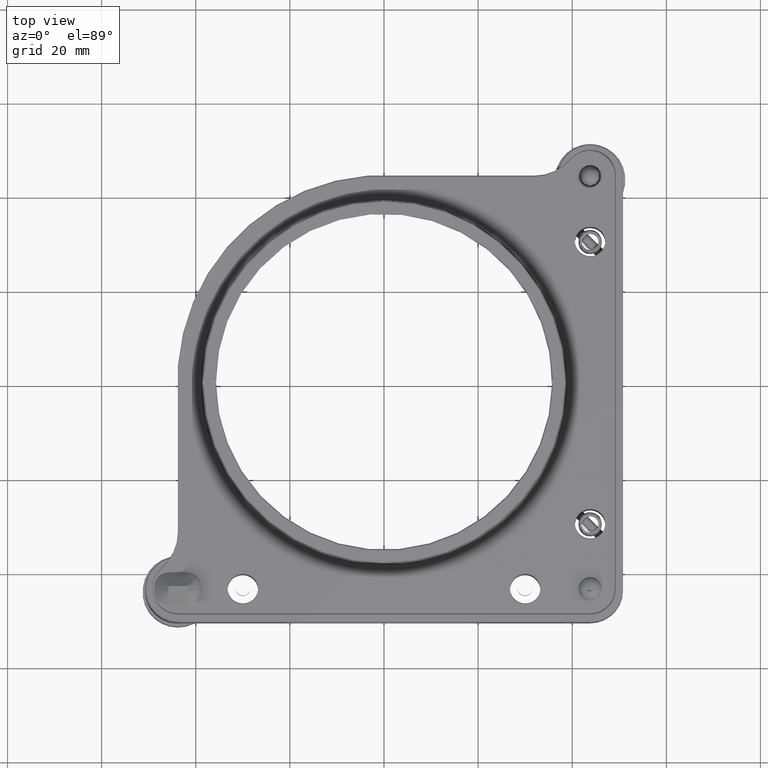
[diagram: clean part render]
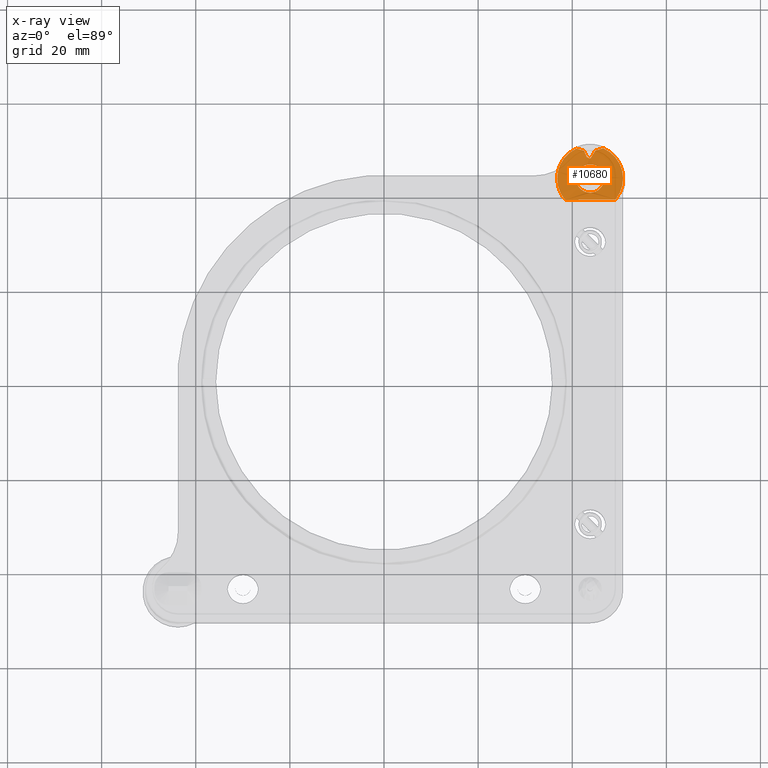
[diagram: x-ray — body ghosted, one internal face saturated and labeled with its STEP entity id]
A machine part, top view, then the same camera in x-ray: the body is ghosted and one INTERNAL B-rep face — a face not visible from any outside direction — is saturated and labeled: STEP entity #10680.
In plain terms, the highlighted planar face has unit normal (0, -0, -1).
Its self-contained STEP definition (entity closure, byte-faithful):
#20 = EDGE_CURVE ( 'NONE', #11042, #3425, #6473, .T. ) ;
#71 = CARTESIAN_POINT ( 'NONE',  ( 50.71463612667319865, 50.88433534184456875, -11.24999999999968381 ) ) ;
#91 = CARTESIAN_POINT ( 'NONE',  ( 43.12635839818614869, 48.34195681374609421, -11.74999999999959677 ) ) ;
#234 = CARTESIAN_POINT ( 'NONE',  ( 40.24165809600086874, 49.82817147133578572, -11.24999999999969980 ) ) ;
#573 = DIRECTION ( 'NONE',  ( -9.443188066785573122E-16, -7.340879554523925956E-15, 1.000000000000000000 ) ) ;
#616 = CARTESIAN_POINT ( 'NONE',  ( 44.66619457740306132, 48.53431151341734306, -11.74999999999960032 ) ) ;
#704 = CARTESIAN_POINT ( 'NONE',  ( 44.83679076531784347, 48.63674082154855682, -11.74999999999959499 ) ) ;
#768 = CARTESIAN_POINT ( 'NONE',  ( 49.95079763130787143, 47.14833789615271087, -11.24999999999968381 ) ) ;
#792 = CARTESIAN_POINT ( 'NONE',  ( 44.37566616111455886, 48.36402346701979127, -11.74999999999959677 ) ) ;
#856 = CARTESIAN_POINT ( 'NONE',  ( 40.96480107234936696, 44.78101143147572571, -11.74999999999961986 ) ) ;
#873 = CARTESIAN_POINT ( 'NONE',  ( 44.08476099202400889, 48.20537130450728824, -11.74999999999959677 ) ) ;
#930 = CARTESIAN_POINT ( 'NONE',  ( 37.34748937889716558, 46.52796653002938143, -11.24999999999969624 ) ) ;
#942 = CARTESIAN_POINT ( 'NONE',  ( 42.33671640497954769, 46.42292214688491470, -11.74999999999960743 ) ) ;
#967 = CARTESIAN_POINT ( 'NONE',  ( 45.26328359502475962, 41.17707785311660729, -11.74999999999965361 ) ) ;
#1008 = AXIS2_PLACEMENT_3D ( 'NONE', #71, #5297, #10508 ) ;
#1029 = CARTESIAN_POINT ( 'NONE',  ( 48.03740992472322091, 49.37272752267310238, -11.24999999999968914 ) ) ;
#1032 = CARTESIAN_POINT ( 'NONE',  ( 43.01461228001090120, 46.72041537211304529, -11.74999999999960920 ) ) ;
#1105 = CARTESIAN_POINT ( 'NONE',  ( 36.83800683629286965, 44.70181958759057039, -11.24999999999968914 ) ) ;
#1112 = CARTESIAN_POINT ( 'NONE',  ( 45.33359673150639679, 50.64151511090496172, -11.24999999999968736 ) ) ;
#1116 = CARTESIAN_POINT ( 'NONE',  ( 43.38252629115073233, 46.79509230339098025, -11.74999999999960743 ) ) ;
#1186 = CARTESIAN_POINT ( 'NONE',  ( 39.42714510664615801, 49.27008393443855994, -11.24999999999969624 ) ) ;
#1220 = CARTESIAN_POINT ( 'NONE',  ( 45.25703948833548651, 46.45494722111575214, -11.74999999999961098 ) ) ;
#1307 = CARTESIAN_POINT ( 'NONE',  ( 46.61928447752942617, 42.77422581609236119, -11.74999999999964118 ) ) ;
#1368 = FACE_OUTER_BOUND ( 'NONE', #11903, .T. ) ;
#1564 = CIRCLE ( 'NONE', #11933, 6.999999999999985789 ) ;
#1806 = CARTESIAN_POINT ( 'NONE',  ( 38.49303744932873173, 39.23533698004224846, -11.49999999999967670 ) ) ;
#1828 = CARTESIAN_POINT ( 'NONE',  ( 42.77424653421842748, 40.98070761356486713, -11.74999999999965006 ) ) ;
#1914 = CARTESIAN_POINT ( 'NONE',  ( 42.81902799979722829, 40.96478601991589130, -11.74999999999965006 ) ) ;
#1989 = CARTESIAN_POINT ( 'NONE',  ( 44.07249854859971805, 48.19930464745058885, -11.74999999999959677 ) ) ;
#2000 = ORIENTED_EDGE ( 'NONE', *, *, #20, .T. ) ;
#2166 = CARTESIAN_POINT ( 'NONE',  ( 46.56673013901488645, 44.96006366985685787, -11.74999999999962341 ) ) ;
#2199 = CARTESIAN_POINT ( 'NONE',  ( 43.79999999999993321, 43.80000000000028848, -11.24999999999960743 ) ) ;
#2215 = CARTESIAN_POINT ( 'NONE',  ( 37.15217781367272920, 45.99250552960464944, -11.24999999999969091 ) ) ;
#2247 = CARTESIAN_POINT ( 'NONE',  ( 45.80236636365506797, 41.55643758815006095, -11.74999999999964650 ) ) ;
#2301 = CARTESIAN_POINT ( 'NONE',  ( 40.12988330037896390, 49.76112875029200922, -11.24999999999969802 ) ) ;
#2311 = CARTESIAN_POINT ( 'NONE',  ( 48.53069107955698058, 48.97693387001631748, -11.24999999999968736 ) ) ;
#2392 = CARTESIAN_POINT ( 'NONE',  ( 50.09588289464709732, 46.87222433624459228, -11.24999999999967670 ) ) ;
#2465 = CARTESIAN_POINT ( 'NONE',  ( 39.10821866511776790, 48.99600774091103972, -11.24999999999969624 ) ) ;
#2492 = CARTESIAN_POINT ( 'NONE',  ( 43.46536322955500253, 48.17136534173913276, -11.74999999999960210 ) ) ;
#2494 = CARTESIAN_POINT ( 'NONE',  ( 44.84622660602839517, 46.61177030477175265, -11.74999999999961275 ) ) ;
#2497 = CARTESIAN_POINT ( 'NONE',  ( 46.80209059277191130, 43.64572377607408527, -11.74999999999963407 ) ) ;
#2666 = CARTESIAN_POINT ( 'NONE',  ( 43.11294540235940786, 48.34922751894201554, -11.74999999999959677 ) ) ;
#3022 = CARTESIAN_POINT ( 'NONE',  ( 38.49303744932877436, 39.23533698004224135, -11.74999999999965894 ) ) ;
#3116 = CARTESIAN_POINT ( 'NONE',  ( 41.36031374736494115, 42.03212520729584867, -11.74999999999964118 ) ) ;
#3208 = CARTESIAN_POINT ( 'NONE',  ( 41.55643758814473898, 41.79763363635260021, -11.74999999999964118 ) ) ;
#3425 = VERTEX_POINT ( 'NONE', #7157 ) ;
#3533 = CARTESIAN_POINT ( 'NONE',  ( 43.92029126337043010, 48.13329656503079690, -11.74999999999959499 ) ) ;
#3535 = CARTESIAN_POINT ( 'NONE',  ( 43.95419067811954505, 46.80212324889977538, -11.74999999999960743 ) ) ;
#3540 = VERTEX_POINT ( 'NONE', #4443 ) ;
#3589 = CARTESIAN_POINT ( 'NONE',  ( 38.72625496664079492, 48.63077462560933384, -11.24999999999969624 ) ) ;
#3597 = CARTESIAN_POINT ( 'NONE',  ( 50.78983768419553257, 44.68074472958053889, -11.24999999999967848 ) ) ;
#3623 = CARTESIAN_POINT ( 'NONE',  ( 44.58538771998616568, 40.87958462788731140, -11.74999999999965183 ) ) ;
#3680 = CARTESIAN_POINT ( 'NONE',  ( 46.54525829023933170, 50.24501306437316117, -11.24999999999968914 ) ) ;
#3704 = CARTESIAN_POINT ( 'NONE',  ( 43.59840739880025495, 48.12169990862857105, -11.74999999999959854 ) ) ;
#3763 = CARTESIAN_POINT ( 'NONE',  ( 47.61484158754296203, 49.67568535290772758, -11.24999999999968203 ) ) ;
#3784 = CARTESIAN_POINT ( 'NONE',  ( 46.50314628068281309, 45.10323357161213664, -11.74999999999962164 ) ) ;
#3787 = CARTESIAN_POINT ( 'NONE',  ( 46.63519892765049235, 42.81898856852473045, -11.74999999999964295 ) ) ;
#3794 = EDGE_CURVE ( 'NONE', #16841, #11108, #12198, .T. ) ;
#3866 = CARTESIAN_POINT ( 'NONE',  ( 43.16442090153363864, 48.32143115754586660, -11.74999999999959499 ) ) ;
#4215 = B_SPLINE_CURVE_WITH_KNOTS ( 'NONE', 3,
 ( #3022, #8229, #16088, #6687 ),
 .UNSPECIFIED., .F., .F.,
 ( 4, 4 ),
 ( 0.000000000000000000, 1.000000000000000000 ),
 .UNSPECIFIED. ) ;
#4308 = ORIENTED_EDGE ( 'NONE', *, *, #10395, .F. ) ;
#4321 = CARTESIAN_POINT ( 'NONE',  ( 41.04416254818603704, 42.61422656934265518, -11.74999999999963229 ) ) ;
#4443 = CARTESIAN_POINT ( 'NONE',  ( 44.95259262190884186, 49.75946757642127238, -11.49999999999965539 ) ) ;
#4719 = B_SPLINE_CURVE_WITH_KNOTS ( 'NONE', 3,
 ( #13947, #704, #616, #5928, #7367, #12499, #5841, #9937, #792, #6010, #14969, #11220, #15141, #11305, #873, #6090, #1989, #12414, #16513, #4812, #10023, #15223, #3533, #8735, #11802, #4985, #16774, #5153, #15736, #3704, #15560, #7875, #5071, #15394, #9154, #2492, #10276, #16853, #5231, #16684, #8904, #14118, #6586, #3866, #6336, #91, #14370, #2666, #13085, #15478, #10357 ),
 .UNSPECIFIED., .F., .F.,
 ( 4, 1, 1, 1, 1, 1, 2, 2, 1, 1, 1, 1, 2, 2, 1, 1, 2, 2, 2, 1, 1, 1, 2, 2, 1, 1, 1, 2, 2, 1, 1, 1, 1, 2, 2, 4 ),
 ( 0.000000000000000000, 0.1250000000000541234, 0.1875000000000792699, 0.2187500000000857647, 0.2343750000000890121, 0.2421875000000932032, 0.2460937500000972278, 0.2500000000001012523, 0.3125000000001338374, 0.3437500000001486589, 0.3593750000001522116, 0.3671875000001539879, 0.3710937500001549316, 0.3750000000001558198, 0.4062500000001656453, 0.4218750000001655898, 0.4296875000001655898, 0.4375000000001655343, 0.5000000000001227907, 0.5312500000001014744, 0.5468750000000914824, 0.5546875000000854872, 0.5585937500000849321, 0.5625000000000842659, 0.5937500000000998090, 0.6093750000001111333, 0.6171875000001213474, 0.6210937500001233458, 0.6250000000001253442, 0.6875000000002039480, 0.7187500000002450262, 0.7343750000002655653, 0.7421875000002758904, 0.7460937500002782219, 0.7500000000002805534, 1.000000000000000000 ),
 .UNSPECIFIED. ) ;
#4783 = EDGE_CURVE ( 'NONE', #10328, #7781, #4215, .T. ) ;
#4795 = CARTESIAN_POINT ( 'NONE',  ( 43.76363588246327652, 46.79977960039685314, -11.74999999999960743 ) ) ;
#4812 = CARTESIAN_POINT ( 'NONE',  ( 43.99464849090146146, 48.16247594787588326, -11.74999999999959677 ) ) ;
#4881 = CARTESIAN_POINT ( 'NONE',  ( 49.79315150604926288, 47.41841029674731089, -11.24999999999968381 ) ) ;
#4906 = CARTESIAN_POINT ( 'NONE',  ( 43.76363588246327652, 46.79977960039685314, -11.74999999999960743 ) ) ;
#4975 = ORIENTED_EDGE ( 'NONE', *, *, #9011, .T. ) ;
#4985 = CARTESIAN_POINT ( 'NONE',  ( 43.79001579209097628, 48.09852542322327196, -11.74999999999959677 ) ) ;
#4987 = CARTESIAN_POINT ( 'NONE',  ( 46.04356241184904519, 45.80236636365517455, -11.74999999999961631 ) ) ;
#5039 = CARTESIAN_POINT ( 'NONE',  ( 37.23465021798845953, 46.23718181994722443, -11.24999999999969624 ) ) ;
#5047 = CARTESIAN_POINT ( 'NONE',  ( 49.62197237381438697, 47.68798004443655714, -11.24999999999968381 ) ) ;
#5071 = CARTESIAN_POINT ( 'NONE',  ( 43.57427850729116869, 48.12925576019092233, -11.74999999999959854 ) ) ;
#5118 = CARTESIAN_POINT ( 'NONE',  ( 49.21605490328123977, 39.36532421876859900, -11.49999999999966960 ) ) ;
#5119 = DIRECTION ( 'NONE',  ( 9.912705577010346257E-16, 1.000000000000000000, 7.434529182757759791E-15 ) ) ;
#5124 = CARTESIAN_POINT ( 'NONE',  ( 39.97541803310085129, 49.66446497189389930, -11.24999999999969269 ) ) ;
#5153 = CARTESIAN_POINT ( 'NONE',  ( 43.67508440426517780, 48.10296690853078161, -11.74999999999960032 ) ) ;
#5204 = CARTESIAN_POINT ( 'NONE',  ( 37.06379610484672327, 45.70859699882372951, -11.24999999999969447 ) ) ;
#5231 = CARTESIAN_POINT ( 'NONE',  ( 43.42144679867752899, 48.19116966723325390, -11.74999999999959854 ) ) ;
#5297 = DIRECTION ( 'NONE',  ( 1.042452886252155840E-15, -7.544801008227817927E-16, -1.000000000000000000 ) ) ;
#5305 = ORIENTED_EDGE ( 'NONE', *, *, #10252, .F. ) ;
#5368 = CARTESIAN_POINT ( 'NONE',  ( 41.70987399986668009, 50.52792058764502059, -11.24999999999969802 ) ) ;
#5592 = CARTESIAN_POINT ( 'NONE',  ( 43.64580932188597728, 40.79787675110075895, -11.74999999999964828 ) ) ;
#5824 = B_SPLINE_CURVE_WITH_KNOTS ( 'NONE', 3,
 ( #11281, #1112, #8965, #3680, #8715, #13840, #5985, #7599, #10088, #8631, #3763, #15200, #1029, #16750, #2311, #10255, #7426, #6318, #5047, #9913, #4881, #768, #2392, #6067, #15458, #16491, #6244, #12642, #12476, #3597, #6157 ),
 .UNSPECIFIED., .F., .F.,
 ( 4, 1, 1, 1, 1, 2, 2, 1, 2, 2, 2, 1, 2, 2, 1, 1, 1, 2, 2, 4 ),
 ( 0.000000000000000000, 0.1250000000000086042, 0.1875000000000142941, 0.2187500000000161537, 0.2343750000000160705, 0.2421875000000165701, 0.2500000000000170419, 0.3125000000000123790, 0.3437500000000109357, 0.3750000000000094924, 0.5000000000000062172, 0.5625000000000047740, 0.5937500000000047740, 0.6250000000000047740, 0.6875000000000077716, 0.7187500000000093259, 0.7343750000000109912, 0.7421875000000118794, 0.7500000000000127676, 1.000000000000000000 ),
 .UNSPECIFIED. ) ;
#5841 = CARTESIAN_POINT ( 'NONE',  ( 44.38671498469484078, 48.37037955877216433, -11.74999999999959499 ) ) ;
#5919 = ORIENTED_EDGE ( 'NONE', *, *, #4783, .F. ) ;
#5928 = CARTESIAN_POINT ( 'NONE',  ( 44.50585454553307585, 48.43963941548625485, -11.74999999999959677 ) ) ;
#5985 = CARTESIAN_POINT ( 'NONE',  ( 47.07802112508338865, 49.98509047326462706, -11.24999999999968736 ) ) ;
#6010 = CARTESIAN_POINT ( 'NONE',  ( 44.37524264688735087, 48.36377934231496312, -11.74999999999959677 ) ) ;
#6067 = CARTESIAN_POINT ( 'NONE',  ( 50.24316752685056287, 46.53951982088645423, -11.24999999999967670 ) ) ;
#6069 = CARTESIAN_POINT ( 'NONE',  ( 46.79977960039656182, 43.83636411753689544, -11.49999999999965894 ) ) ;
#6071 = CARTESIAN_POINT ( 'NONE',  ( 42.49676642839046536, 46.50314628068455391, -11.74999999999960387 ) ) ;
#6080 = VERTEX_POINT ( 'NONE', #9358 ) ;
#6090 = CARTESIAN_POINT ( 'NONE',  ( 44.07737454078666417, 48.20171086364830160, -11.74999999999959677 ) ) ;
#6148 = CARTESIAN_POINT ( 'NONE',  ( 37.47953843248323835, 46.81050066367767215, -11.24999999999969624 ) ) ;
#6157 = CARTESIAN_POINT ( 'NONE',  ( 50.79948573425872382, 43.88484960758582076, -11.24999999999964650 ) ) ;
#6160 = CARTESIAN_POINT ( 'NONE',  ( 42.63994692993873059, 46.56673448685778283, -11.74999999999961275 ) ) ;
#6244 = CARTESIAN_POINT ( 'NONE',  ( 50.35776653157290639, 46.24874386389449654, -11.24999999999968381 ) ) ;
#6247 = CARTESIAN_POINT ( 'NONE',  ( 41.79763363634820195, 46.04356241185119814, -11.74999999999960743 ) ) ;
#6310 = CARTESIAN_POINT ( 'NONE',  ( 37.11407255741891476, 45.87441090160764645, -11.24999999999969802 ) ) ;
#6318 = CARTESIAN_POINT ( 'NONE',  ( 49.44397995476180085, 47.95027257143495802, -11.24999999999968381 ) ) ;
#6336 = CARTESIAN_POINT ( 'NONE',  ( 43.13792914259759925, 48.33569830752492180, -11.74999999999959677 ) ) ;
#6405 = CARTESIAN_POINT ( 'NONE',  ( 41.14505277887982260, 45.25703948833391621, -11.74999999999961631 ) ) ;
#6426 = CARTESIAN_POINT ( 'NONE',  ( 46.79515329141599977, 44.21800151850096228, -11.74999999999963052 ) ) ;
#6473 = B_SPLINE_CURVE_WITH_KNOTS ( 'NONE', 3,
 ( #12804, #11694, #1105, #7417, #5204, #6310, #16573, #2215, #16740, #5039, #930, #6148, #11361, #15280, #10245, #15448, #14171, #3589, #11613, #2465, #7675, #1186, #8787, #5124, #2301, #7844, #234, #14669, #10663, #5368, #10579 ),
 .UNSPECIFIED., .F., .F.,
 ( 4, 1, 1, 1, 1, 2, 2, 1, 2, 2, 2, 1, 2, 2, 1, 1, 1, 2, 2, 4 ),
 ( 0.000000000000000000, 0.1249999999999958644, 0.1874999999999936440, 0.2187499999999925060, 0.2343749999999916456, 0.2421874999999915345, 0.2499999999999914513, 0.3124999999999892863, 0.3437499999999881761, 0.3749999999999871214, 0.4999999999999764078, 0.5624999999999702460, 0.5937499999999679146, 0.6249999999999655831, 0.6874999999999624745, 0.7187499999999612532, 0.7343749999999605871, 0.7421874999999611422, 0.7499999999999616973, 1.000000000000000000 ),
 .UNSPECIFIED. ) ;
#6510 = CARTESIAN_POINT ( 'NONE',  ( 46.61177030477099237, 42.75377339397113019, -11.74999999999964473 ) ) ;
#6586 = CARTESIAN_POINT ( 'NONE',  ( 43.21537784064313570, 48.29424098240270524, -11.74999999999959677 ) ) ;
#6687 = CARTESIAN_POINT ( 'NONE',  ( 49.21605490328126109, 39.36532421876858479, -11.74999999999966782 ) ) ;
#6953 = CARTESIAN_POINT ( 'NONE',  ( 40.87951506240545285, 43.01478187675218834, -11.74999999999963585 ) ) ;
#7116 = CARTESIAN_POINT ( 'NONE',  ( 43.83636411753658280, 40.80022039960358882, -11.49999999999966782 ) ) ;
#7119 = CARTESIAN_POINT ( 'NONE',  ( 42.34296051166801789, 41.14505277887838020, -11.74999999999964828 ) ) ;
#7157 = CARTESIAN_POINT ( 'NONE',  ( 42.50328283464790502, 49.72977639878415346, -11.49999999999954170 ) ) ;
#7346 = CARTESIAN_POINT ( 'NONE',  ( 40.82083043580887249, 44.23560100342727708, -11.74999999999962519 ) ) ;
#7367 = CARTESIAN_POINT ( 'NONE',  ( 44.43535674310574279, 48.39851055690958503, -11.74999999999959677 ) ) ;
#7369 = CARTESIAN_POINT ( 'NONE',  ( 46.79977960039656892, 43.83636411753689544, -11.74999999999963229 ) ) ;
#7413 = CARTESIAN_POINT ( 'NONE',  ( 43.79999999999993321, 43.80000000000028848, -11.24999999999967315 ) ) ;
#7417 = CARTESIAN_POINT ( 'NONE',  ( 36.97408169211369255, 45.37527005118023027, -11.24999999999969980 ) ) ;
#7426 = CARTESIAN_POINT ( 'NONE',  ( 49.24850775531762537, 48.19987444028954116, -11.24999999999968026 ) ) ;
#7454 = CARTESIAN_POINT ( 'NONE',  ( 45.56787479271751806, 41.36031374737406452, -11.74999999999965539 ) ) ;
#7522 = CARTESIAN_POINT ( 'NONE',  ( 40.80022039960330460, 43.76363588246356073, -11.74999999999962874 ) ) ;
#7550 = EDGE_CURVE ( 'NONE', #3540, #3425, #4719, .T. ) ;
#7561 = CARTESIAN_POINT ( 'NONE',  ( 50.79948573425872382, 43.88484960758582076, -11.24999999999964650 ) ) ;
#7599 = CARTESIAN_POINT ( 'NONE',  ( 47.12181252618186278, 49.96167037898589314, -11.24999999999968914 ) ) ;
#7623 = CARTESIAN_POINT ( 'NONE',  ( 46.23968625262421739, 45.56787479271747543, -11.74999999999961631 ) ) ;
#7675 = CARTESIAN_POINT ( 'NONE',  ( 39.18882092311368126, 49.06761668792895392, -11.24999999999969802 ) ) ;
#7686 = CARTESIAN_POINT ( 'NONE',  ( 40.94175400707849377, 44.71372243618048259, -11.74999999999961808 ) ) ;
#7708 = CARTESIAN_POINT ( 'NONE',  ( 40.80022039960329749, 43.76363588246355363, -11.49999999999965894 ) ) ;
#7781 = VERTEX_POINT ( 'NONE', #5118 ) ;
#7844 = CARTESIAN_POINT ( 'NONE',  ( 40.19684635691551478, 49.80149575950331808, -11.24999999999969624 ) ) ;
#7855 = FACE_BOUND ( 'NONE', #10560, .T. ) ;
#7875 = CARTESIAN_POINT ( 'NONE',  ( 43.57927302127175295, 48.12763122789420578, -11.74999999999960210 ) ) ;
#8229 = CARTESIAN_POINT ( 'NONE',  ( 42.06737660064626994, 39.27866605961769153, -11.74999999999966249 ) ) ;
#8411 = CARTESIAN_POINT ( 'NONE',  ( 41.17707785310968660, 42.33671640498527466, -11.74999999999963762 ) ) ;
#8413 = EDGE_CURVE ( 'NONE', #7781, #13577, #11339, .T. ) ;
#8631 = CARTESIAN_POINT ( 'NONE',  ( 47.34828499804929436, 49.83766068575142327, -11.24999999999968381 ) ) ;
#8715 = CARTESIAN_POINT ( 'NONE',  ( 46.85774688759379814, 50.09836243736397421, -11.24999999999968558 ) ) ;
#8735 = CARTESIAN_POINT ( 'NONE',  ( 43.91649558207568305, 48.13193514599998935, -11.74999999999959499 ) ) ;
#8740 = CARTESIAN_POINT ( 'NONE',  ( 46.70625020917822212, 43.04429928603546784, -11.74999999999963940 ) ) ;
#8787 = CARTESIAN_POINT ( 'NONE',  ( 39.67361495710653685, 49.46124105414422445, -11.24999999999969447 ) ) ;
#8820 = CARTESIAN_POINT ( 'NONE',  ( 45.59922872651221581, 46.23590070751304637, -11.74999999999961275 ) ) ;
#8904 = CARTESIAN_POINT ( 'NONE',  ( 43.37569534644094915, 48.21245068636962117, -11.74999999999960032 ) ) ;
#8906 = CARTESIAN_POINT ( 'NONE',  ( 44.55558843509358979, 46.70629307034599265, -11.74999999999960743 ) ) ;
#8909 = CARTESIAN_POINT ( 'NONE',  ( 45.10323357161196611, 41.09685371931649200, -11.74999999999965006 ) ) ;
#8965 = CARTESIAN_POINT ( 'NONE',  ( 45.90600400033383011, 50.49681823933085667, -11.24999999999968914 ) ) ;
#9011 = EDGE_CURVE ( 'NONE', #3540, #13577, #5824, .T. ) ;
#9069 = CARTESIAN_POINT ( 'NONE',  ( 46.42292214688215779, 45.26328359502480936, -11.74999999999962164 ) ) ;
#9154 = CARTESIAN_POINT ( 'NONE',  ( 43.51318750008466907, 48.15104534187472041, -11.74999999999959677 ) ) ;
#9358 = CARTESIAN_POINT ( 'NONE',  ( 43.76363588246326231, 46.79977960039686025, -11.49999999999964473 ) ) ;
#9520 = CARTESIAN_POINT ( 'NONE',  ( 41.03326986098497997, 42.63993633014269591, -11.74999999999963762 ) ) ;
#9603 = CARTESIAN_POINT ( 'NONE',  ( 42.75377339397123677, 40.98822969522908011, -11.74999999999964828 ) ) ;
#9692 = CARTESIAN_POINT ( 'NONE',  ( 43.36454870174420506, 40.82077328758602874, -11.74999999999965183 ) ) ;
#9913 = CARTESIAN_POINT ( 'NONE',  ( 49.73674959087353642, 47.51029821351679772, -11.24999999999968558 ) ) ;
#9937 = CARTESIAN_POINT ( 'NONE',  ( 44.38006841873684749, 48.36655481945219748, -11.74999999999959854 ) ) ;
#10023 = CARTESIAN_POINT ( 'NONE',  ( 43.95005460741325720, 48.14433750973687154, -11.74999999999959499 ) ) ;
#10088 = CARTESIAN_POINT ( 'NONE',  ( 47.14262538511188438, 49.95040717128249952, -11.24999999999968914 ) ) ;
#10091 = CARTESIAN_POINT ( 'NONE',  ( 42.61422656934135489, 46.55583745181309752, -11.74999999999960920 ) ) ;
#10114 = CARTESIAN_POINT ( 'NONE',  ( 46.79977960039656892, 43.83636411753689544, -11.74999999999963229 ) ) ;
#10240 = DIRECTION ( 'NONE',  ( -9.443188066785573122E-16, -7.340879554523925956E-15, 1.000000000000000000 ) ) ;
#10245 = CARTESIAN_POINT ( 'NONE',  ( 37.87522227668041808, 47.55194500412513747, -11.24999999999969447 ) ) ;
#10252 = EDGE_CURVE ( 'NONE', #6080, #15404, #11879, .T. ) ;
#10255 = CARTESIAN_POINT ( 'NONE',  ( 48.83425698257377690, 48.68215730047371892, -11.24999999999968381 ) ) ;
#10267 = ORIENTED_EDGE ( 'NONE', *, *, #7550, .F. ) ;
#10276 = CARTESIAN_POINT ( 'NONE',  ( 43.44007113521390551, 48.18265187735260469, -11.74999999999959499 ) ) ;
#10280 = CARTESIAN_POINT ( 'NONE',  ( 44.98577343065930023, 41.04416254818753629, -11.74999999999965006 ) ) ;
#10285 = ORIENTED_EDGE ( 'NONE', *, *, #11105, .F. ) ;
#10328 = VERTEX_POINT ( 'NONE', #1806 ) ;
#10357 = CARTESIAN_POINT ( 'NONE',  ( 42.51595038105976698, 48.68479442516282774, -11.74999999999959321 ) ) ;
#10395 = EDGE_CURVE ( 'NONE', #11108, #6080, #13082, .T. ) ;
#10508 = DIRECTION ( 'NONE',  ( -1.000000000000000000, 0.000000000000000000, -1.042452886252155840E-15 ) ) ;
#10560 = EDGE_LOOP ( 'NONE', ( #10285, #5305, #4308, #16273 ) ) ;
#10579 = CARTESIAN_POINT ( 'NONE',  ( 42.49180431154297821, 50.67667245408033239, -11.24999999999969269 ) ) ;
#10663 = CARTESIAN_POINT ( 'NONE',  ( 40.97484735841158709, 50.25386101685343476, -11.24999999999969802 ) ) ;
#10680 = ADVANCED_FACE ( 'NONE', ( #7855, #1368 ), #11786, .T. ) ;
#10806 = CARTESIAN_POINT ( 'NONE',  ( 41.09685371931235665, 42.49676642839393992, -11.74999999999963762 ) ) ;
#11042 = VERTEX_POINT ( 'NONE', #14285 ) ;
#11060 = CARTESIAN_POINT ( 'NONE',  ( 43.04441156491368758, 40.89370692965459853, -11.74999999999965361 ) ) ;
#11105 = EDGE_CURVE ( 'NONE', #15404, #16841, #12867, .T. ) ;
#11108 = VERTEX_POINT ( 'NONE', #7708 ) ;
#11220 = CARTESIAN_POINT ( 'NONE',  ( 44.22315978668756031, 48.27768206300495990, -11.74999999999960032 ) ) ;
#11281 = CARTESIAN_POINT ( 'NONE',  ( 44.94111409880499508, 50.70636363171770000, -11.24999999999968914 ) ) ;
#11285 = CARTESIAN_POINT ( 'NONE',  ( 41.36409929248073070, 45.59922872650874126, -11.74999999999961808 ) ) ;
#11305 = CARTESIAN_POINT ( 'NONE',  ( 44.10250328560987043, 48.21427014911542841, -11.74999999999959677 ) ) ;
#11336 = ORIENTED_EDGE ( 'NONE', *, *, #8413, .F. ) ;
#11339 = CIRCLE ( 'NONE', #14602, 6.999999999999985789 ) ;
#11361 = CARTESIAN_POINT ( 'NONE',  ( 37.57183999991336520, 46.99702329134676404, -11.24999999999969802 ) ) ;
#11395 = CARTESIAN_POINT ( 'NONE',  ( 44.71365694017207204, 46.65827099526936905, -11.74999999999960743 ) ) ;
#11482 = CARTESIAN_POINT ( 'NONE',  ( 46.45494722112340469, 42.34296051167530095, -11.74999999999964828 ) ) ;
#11613 = CARTESIAN_POINT ( 'NONE',  ( 38.95335942197957024, 48.85191312819975451, -11.24999999999969447 ) ) ;
#11647 = CARTESIAN_POINT ( 'NONE',  ( 44.23545129826548816, 46.77922671241460506, -11.74999999999960743 ) ) ;
#11694 = CARTESIAN_POINT ( 'NONE',  ( 36.79569233640968662, 44.11292507313772404, -11.24999999999969624 ) ) ;
#11786 = PLANE ( 'NONE',  #1008 ) ;
#11802 = CARTESIAN_POINT ( 'NONE',  ( 43.84815458396033705, 48.10869875868008450, -11.74999999999960032 ) ) ;
#11879 = B_SPLINE_CURVE_WITH_KNOTS ( 'NONE', 3,
 ( #4906, #3535, #11647, #8906, #11395, #16854, #14202, #2494, #1220, #8820, #4987, #7623, #9069, #3784, #16605, #12754, #2166, #14120, #6426, #7369 ),
 .UNSPECIFIED., .F., .F.,
 ( 4, 1, 1, 1, 2, 2, 2, 1, 1, 1, 2, 2, 4 ),
 ( 0.4999999999999961697, 0.5625000000000121014, 0.5937500000000189848, 0.6093750000000224265, 0.6171875000000226485, 0.6250000000000228706, 0.7500000000000153211, 0.8125000000000116573, 0.8437500000000097700, 0.8593750000000083267, 0.8671875000000082157, 0.8750000000000079936, 1.000000000000000000 ),
 .UNSPECIFIED. ) ;
#11903 = EDGE_LOOP ( 'NONE', ( #14788, #2000, #10267, #4975, #11336, #5919 ) ) ;
#11933 = AXIS2_PLACEMENT_3D ( 'NONE', #7413, #10240, #5119 ) ;
#12047 = EDGE_CURVE ( 'NONE', #11042, #10328, #1564, .T. ) ;
#12168 = CARTESIAN_POINT ( 'NONE',  ( 40.80484670858371032, 43.38199848151387528, -11.74999999999963229 ) ) ;
#12198 = B_SPLINE_CURVE_WITH_KNOTS ( 'NONE', 3,
 ( #14804, #5592, #9692, #11060, #13623, #1914, #1828, #9603, #7119, #16270, #3208, #3116, #8411, #10806, #16014, #4321, #9520, #6953, #12168, #13160 ),
 .UNSPECIFIED., .F., .F.,
 ( 4, 1, 1, 1, 2, 2, 2, 1, 1, 1, 2, 2, 4 ),
 ( 0.5000000000000023315, 0.5625000000000057732, 0.5937500000000074385, 0.6093750000000079936, 0.6171875000000078826, 0.6250000000000077716, 0.7500000000000015543, 0.8124999999999968914, 0.8437499999999946709, 0.8593749999999920064, 0.8671874999999917843, 0.8749999999999913403, 1.000000000000000000 ),
 .UNSPECIFIED. ) ;
#12414 = CARTESIAN_POINT ( 'NONE',  ( 44.07149483496095144, 48.19880841010898820, -11.74999999999959499 ) ) ;
#12476 = CARTESIAN_POINT ( 'NONE',  ( 50.64860837949198213, 45.45238395582834556, -11.24999999999968026 ) ) ;
#12499 = CARTESIAN_POINT ( 'NONE',  ( 44.40252589526900096, 48.37949792521842340, -11.74999999999959499 ) ) ;
#12642 = CARTESIAN_POINT ( 'NONE',  ( 50.36727249016855268, 46.22312301540740265, -11.24999999999968203 ) ) ;
#12645 = CARTESIAN_POINT ( 'NONE',  ( 40.98071552247044735, 44.82577418390809498, -11.74999999999961986 ) ) ;
#12732 = CARTESIAN_POINT ( 'NONE',  ( 40.98822969522870352, 44.84622660602880728, -11.74999999999962341 ) ) ;
#12754 = CARTESIAN_POINT ( 'NONE',  ( 46.55583745181233724, 44.98577343065956313, -11.74999999999961808 ) ) ;
#12804 = CARTESIAN_POINT ( 'NONE',  ( 36.80051426574112128, 43.71515039241472778, -11.24999999999954703 ) ) ;
#12816 = CARTESIAN_POINT ( 'NONE',  ( 40.79790940722797643, 43.95427622392637801, -11.74999999999962519 ) ) ;
#12867 = B_SPLINE_CURVE_WITH_KNOTS ( 'NONE', 3,
 ( #10114, #2497, #14205, #8740, #13006, #3787, #1307, #6510, #11482, #13951, #2247, #7454, #967, #8909, #15314, #10280, #16690, #3623, #14037, #14123 ),
 .UNSPECIFIED., .F., .F.,
 ( 4, 1, 1, 1, 2, 2, 2, 1, 1, 1, 2, 2, 4 ),
 ( 0.000000000000000000, 0.06249999999999863998, 0.09374999999999908407, 0.1093750000000001388, 0.1171875000000002776, 0.1250000000000004441, 0.2499999999999987788, 0.3124999999999978906, 0.3437499999999983902, 0.3593749999999971689, 0.3671874999999960587, 0.3749999999999948930, 0.5000000000000023315 ),
 .UNSPECIFIED. ) ;
#13006 = CARTESIAN_POINT ( 'NONE',  ( 46.65824599292137975, 42.88627756381995937, -11.74999999999964295 ) ) ;
#13082 = B_SPLINE_CURVE_WITH_KNOTS ( 'NONE', 3,
 ( #7522, #12816, #7346, #16495, #7686, #856, #12645, #12732, #6405, #11285, #6247, #15462, #942, #6071, #16754, #10091, #6160, #1032, #1116, #4795 ),
 .UNSPECIFIED., .F., .F.,
 ( 4, 1, 1, 1, 2, 2, 2, 1, 1, 1, 2, 2, 4 ),
 ( 0.000000000000000000, 0.06250000000000467681, 0.09375000000000702216, 0.1093750000000078965, 0.1171875000000079520, 0.1250000000000080214, 0.2500000000000025535, 0.3124999999999991118, 0.3437499999999973910, 0.3593749999999970024, 0.3671874999999967804, 0.3749999999999966138, 0.4999999999999961697 ),
 .UNSPECIFIED. ) ;
#13085 = CARTESIAN_POINT ( 'NONE',  ( 42.97101498047587143, 48.42631622979089911, -11.74999999999959499 ) ) ;
#13160 = CARTESIAN_POINT ( 'NONE',  ( 40.80022039960330460, 43.76363588246356073, -11.74999999999962874 ) ) ;
#13577 = VERTEX_POINT ( 'NONE', #7561 ) ;
#13623 = CARTESIAN_POINT ( 'NONE',  ( 42.88634305983211448, 40.94172900473116528, -11.74999999999964828 ) ) ;
#13840 = CARTESIAN_POINT ( 'NONE',  ( 47.01220654937144161, 50.01985011397680836, -11.24999999999968736 ) ) ;
#13947 = CARTESIAN_POINT ( 'NONE',  ( 44.96526016832034145, 48.71448560279999640, -11.74999999999959499 ) ) ;
#13951 = CARTESIAN_POINT ( 'NONE',  ( 46.23590070751233583, 42.00077127349005934, -11.74999999999963940 ) ) ;
#14037 = CARTESIAN_POINT ( 'NONE',  ( 44.21747370883782935, 40.80490769660924855, -11.74999999999965539 ) ) ;
#14118 = CARTESIAN_POINT ( 'NONE',  ( 43.30918540381163950, 48.24523713137597980, -11.74999999999959854 ) ) ;
#14120 = CARTESIAN_POINT ( 'NONE',  ( 46.72048493759424304, 44.58521812326263500, -11.74999999999962697 ) ) ;
#14123 = CARTESIAN_POINT ( 'NONE',  ( 43.83636411753659701, 40.80022039960358882, -11.74999999999965183 ) ) ;
#14171 = CARTESIAN_POINT ( 'NONE',  ( 38.51470373940767189, 48.39464637244842038, -11.24999999999969624 ) ) ;
#14202 = CARTESIAN_POINT ( 'NONE',  ( 44.82575346578277475, 46.61929238643561035, -11.74999999999961098 ) ) ;
#14205 = CARTESIAN_POINT ( 'NONE',  ( 46.77916956419100103, 43.36439899657317909, -11.74999999999963585 ) ) ;
#14285 = CARTESIAN_POINT ( 'NONE',  ( 36.80051426574112128, 43.71515039241472778, -11.24999999999954703 ) ) ;
#14370 = CARTESIAN_POINT ( 'NONE',  ( 43.11859631670322557, 48.34616115419866844, -11.74999999999959677 ) ) ;
#14602 = AXIS2_PLACEMENT_3D ( 'NONE', #2199, #573, #16299 ) ;
#14669 = CARTESIAN_POINT ( 'NONE',  ( 40.26522054432667375, 49.84201351435724092, -11.24999999999969802 ) ) ;
#14788 = ORIENTED_EDGE ( 'NONE', *, *, #12047, .F. ) ;
#14804 = CARTESIAN_POINT ( 'NONE',  ( 43.83636411753659701, 40.80022039960358882, -11.74999999999965183 ) ) ;
#14969 = CARTESIAN_POINT ( 'NONE',  ( 44.30833806108920925, 48.32536755235968684, -11.74999999999959499 ) ) ;
#15141 = CARTESIAN_POINT ( 'NONE',  ( 44.14001683557622613, 48.23349910208039404, -11.74999999999960032 ) ) ;
#15200 = CARTESIAN_POINT ( 'NONE',  ( 47.86991383540237166, 49.49623999186075451, -11.24999999999968736 ) ) ;
#15223 = CARTESIAN_POINT ( 'NONE',  ( 43.93204911181975092, 48.13757776061657268, -11.74999999999959677 ) ) ;
#15280 = CARTESIAN_POINT ( 'NONE',  ( 37.61937551195817520, 47.08800840755780825, -11.24999999999969447 ) ) ;
#15314 = CARTESIAN_POINT ( 'NONE',  ( 45.03297904202798918, 41.06491347911545375, -11.74999999999965183 ) ) ;
#15394 = CARTESIAN_POINT ( 'NONE',  ( 43.54944844370592705, 48.13749060718395612, -11.74999999999960032 ) ) ;
#15404 = VERTEX_POINT ( 'NONE', #6069 ) ;
#15448 = CARTESIAN_POINT ( 'NONE',  ( 38.11233892241553889, 47.90240353203259360, -11.24999999999969269 ) ) ;
#15458 = CARTESIAN_POINT ( 'NONE',  ( 50.31131446586255151, 46.37052455600774437, -11.24999999999968203 ) ) ;
#15462 = CARTESIAN_POINT ( 'NONE',  ( 42.03212520728828849, 46.23968625262779852, -11.74999999999960920 ) ) ;
#15478 = CARTESIAN_POINT ( 'NONE',  ( 42.77274448836001142, 48.53777653847552642, -11.74999999999959144 ) ) ;
#15560 = CARTESIAN_POINT ( 'NONE',  ( 43.58695524626117646, 48.12521098944805686, -11.74999999999959677 ) ) ;
#15736 = CARTESIAN_POINT ( 'NONE',  ( 43.62463079344255590, 48.11434232466481120, -11.74999999999959677 ) ) ;
#16014 = CARTESIAN_POINT ( 'NONE',  ( 41.06491347911284606, 42.56702095797565022, -11.74999999999964118 ) ) ;
#16088 = CARTESIAN_POINT ( 'NONE',  ( 45.64171575196376551, 39.32199513919314171, -11.74999999999966427 ) ) ;
#16270 = CARTESIAN_POINT ( 'NONE',  ( 42.00077127349987904, 41.36409929247273709, -11.74999999999964650 ) ) ;
#16273 = ORIENTED_EDGE ( 'NONE', *, *, #3794, .F. ) ;
#16299 = DIRECTION ( 'NONE',  ( -9.912705577010346257E-16, 1.000000000000000000, 7.434529182757759791E-15 ) ) ;
#16491 = CARTESIAN_POINT ( 'NONE',  ( 50.33934271606274535, 46.29753165523121794, -11.24999999999968026 ) ) ;
#16495 = CARTESIAN_POINT ( 'NONE',  ( 40.89374979082165851, 44.55570071396499543, -11.74999999999962341 ) ) ;
#16513 = CARTESIAN_POINT ( 'NONE',  ( 44.03729649463993923, 48.18207864946629115, -11.74999999999959854 ) ) ;
#16573 = CARTESIAN_POINT ( 'NONE',  ( 37.13678087556532148, 45.94529195186406412, -11.24999999999969447 ) ) ;
#16605 = CARTESIAN_POINT ( 'NONE',  ( 46.53508652088419950, 45.03297904202820945, -11.74999999999962519 ) ) ;
#16684 = CARTESIAN_POINT ( 'NONE',  ( 43.41624430076250718, 48.19357935865264153, -11.74999999999959499 ) ) ;
#16690 = CARTESIAN_POINT ( 'NONE',  ( 44.96005307006132057, 41.03326551314266624, -11.74999999999965006 ) ) ;
#16740 = CARTESIAN_POINT ( 'NONE',  ( 37.15962579364562401, 46.01496799916871083, -11.24999999999969447 ) ) ;
#16750 = CARTESIAN_POINT ( 'NONE',  ( 48.11867460531821905, 49.31000617093471305, -11.24999999999968914 ) ) ;
#16754 = CARTESIAN_POINT ( 'NONE',  ( 42.56702095797341201, 46.53508652088537190, -11.74999999999960565 ) ) ;
#16774 = CARTESIAN_POINT ( 'NONE',  ( 43.71491347903533153, 48.09894184063325895, -11.74999999999959854 ) ) ;
#16841 = VERTEX_POINT ( 'NONE', #7116 ) ;
#16853 = CARTESIAN_POINT ( 'NONE',  ( 43.42893596069426820, 48.18773036454724235, -11.74999999999959854 ) ) ;
#16854 = CARTESIAN_POINT ( 'NONE',  ( 44.78097200020521740, 46.63521398008462171, -11.74999999999960743 ) ) ;